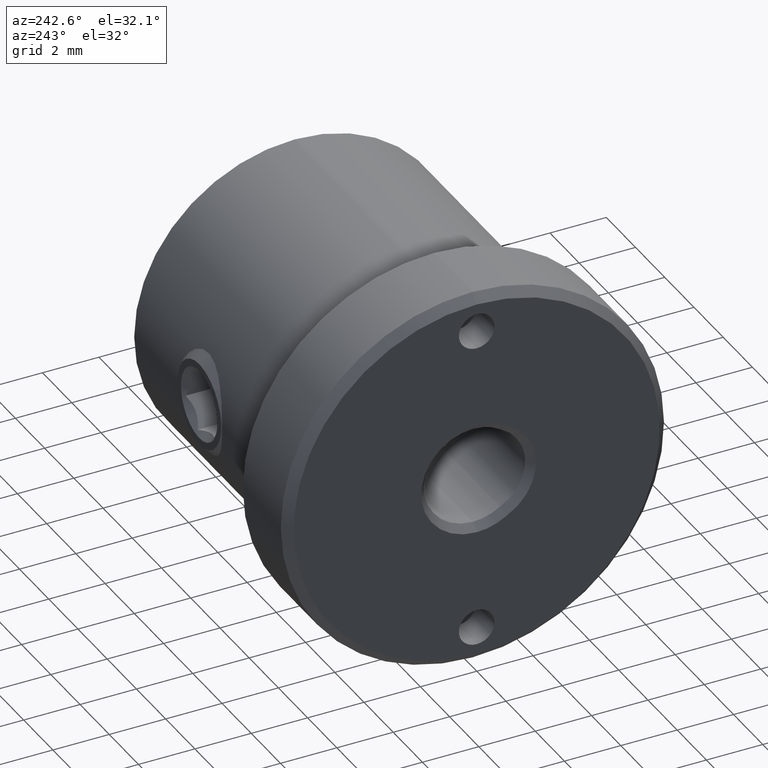
[diagram: clean part render]
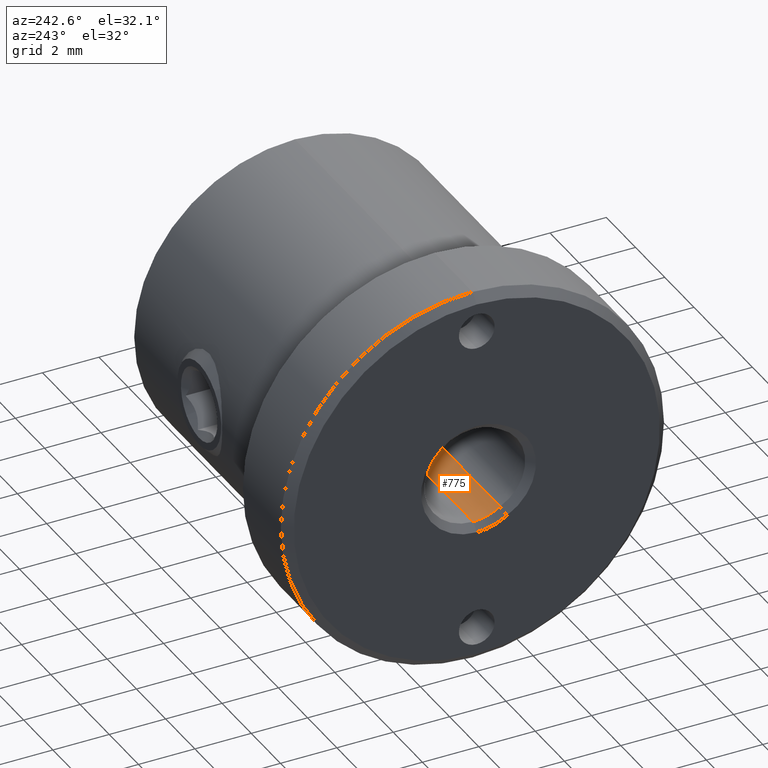
[diagram: same view with one face highlighted and labeled with its STEP entity id]
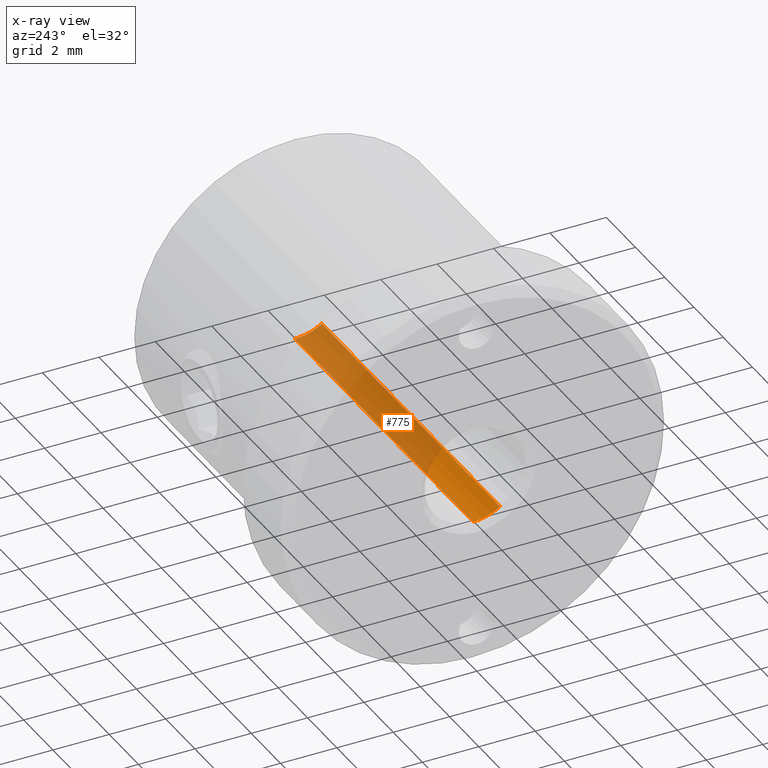
[diagram: x-ray of the same camera — body ghosted, the highlighted face saturated]
A machine part, auxiliary view. The second image highlights one B-rep face of the part: STEP entity #775.
The next image is the same camera in x-ray: the body ghosted, the highlighted face saturated — about 70% of this face is hidden behind the body in this view.
In plain terms, the highlighted cylindrical surface (partial cylindrical patch) has radius 1.725 mm, axis along (-1, -0, -0).
Its self-contained STEP definition (entity closure, byte-faithful):
#98 = CARTESIAN_POINT ( 'NONE',  ( 12.69999999999999929, 2.112515728529184412E-16, -1.725000000000000089 ) ) ;
#137 = EDGE_CURVE ( 'NONE', #706, #2293, #908, .T. ) ;
#168 = VECTOR ( 'NONE', #2200, 1000.000000000000000 ) ;
#276 = ORIENTED_EDGE ( 'NONE', *, *, #2208, .T. ) ;
#431 = DIRECTION ( 'NONE',  ( 0.000000000000000000, 0.000000000000000000, -1.000000000000000000 ) ) ;
#547 = CARTESIAN_POINT ( 'NONE',  ( 6.349999999999999645, -0.9562500000000009326, -1.435691797531767788 ) ) ;
#706 = VERTEX_POINT ( 'NONE', #1246 ) ;
#775 = ADVANCED_FACE ( 'NONE', ( #1041 ), #2010, .F. ) ;
#806 = DIRECTION ( 'NONE',  ( -1.000000000000000000, -0.000000000000000000, -0.000000000000000000 ) ) ;
#836 = CARTESIAN_POINT ( 'NONE',  ( 0.2500000000000036637, 2.112515728529184412E-16, -1.725000000000000089 ) ) ;
#908 = CIRCLE ( 'NONE', #1985, 1.725000000000000089 ) ;
#969 = AXIS2_PLACEMENT_3D ( 'NONE', #2594, #2567, #431 ) ;
#1041 = FACE_OUTER_BOUND ( 'NONE', #2843, .T. ) ;
#1244 = LINE ( 'NONE', #547, #168 ) ;
#1246 = CARTESIAN_POINT ( 'NONE',  ( 12.44999999999999751, -0.9562500000000009326, -1.435691797531767788 ) ) ;
#1324 = ORIENTED_EDGE ( 'NONE', *, *, #137, .T. ) ;
#1409 = VERTEX_POINT ( 'NONE', #836 ) ;
#1706 = CARTESIAN_POINT ( 'NONE',  ( 12.44999999999999751, 0.000000000000000000, 0.000000000000000000 ) ) ;
#1721 = DIRECTION ( 'NONE',  ( 1.000000000000000000, -0.000000000000000000, -0.000000000000000000 ) ) ;
#1751 = LINE ( 'NONE', #98, #2456 ) ;
#1775 = ORIENTED_EDGE ( 'NONE', *, *, #2257, .T. ) ;
#1965 = DIRECTION ( 'NONE',  ( 0.000000000000000000, 0.000000000000000000, -1.000000000000000000 ) ) ;
#1985 = AXIS2_PLACEMENT_3D ( 'NONE', #1706, #1721, #1965 ) ;
#2010 = CYLINDRICAL_SURFACE ( 'NONE', #2405, 1.725000000000000089 ) ;
#2025 = DIRECTION ( 'NONE',  ( 0.000000000000000000, 0.000000000000000000, 1.000000000000000000 ) ) ;
#2118 = CARTESIAN_POINT ( 'NONE',  ( 0.2500000000000036637, -0.9562500000000009326, -1.435691797531767788 ) ) ;
#2200 = DIRECTION ( 'NONE',  ( 1.000000000000000000, 0.000000000000000000, 0.000000000000000000 ) ) ;
#2208 = EDGE_CURVE ( 'NONE', #2293, #1409, #1751, .T. ) ;
#2257 = EDGE_CURVE ( 'NONE', #3038, #706, #1244, .T. ) ;
#2264 = CIRCLE ( 'NONE', #969, 1.725000000000000089 ) ;
#2293 = VERTEX_POINT ( 'NONE', #2994 ) ;
#2405 = AXIS2_PLACEMENT_3D ( 'NONE', #2929, #806, #2025 ) ;
#2456 = VECTOR ( 'NONE', #2687, 1000.000000000000000 ) ;
#2567 = DIRECTION ( 'NONE',  ( -1.000000000000000000, 0.000000000000000000, 0.000000000000000000 ) ) ;
#2594 = CARTESIAN_POINT ( 'NONE',  ( 0.2500000000000036637, 0.000000000000000000, 0.000000000000000000 ) ) ;
#2687 = DIRECTION ( 'NONE',  ( -1.000000000000000000, -0.000000000000000000, -0.000000000000000000 ) ) ;
#2734 = EDGE_CURVE ( 'NONE', #1409, #3038, #2264, .T. ) ;
#2773 = ORIENTED_EDGE ( 'NONE', *, *, #2734, .T. ) ;
#2843 = EDGE_LOOP ( 'NONE', ( #1324, #276, #2773, #1775 ) ) ;
#2929 = CARTESIAN_POINT ( 'NONE',  ( 12.69999999999999929, 0.000000000000000000, 0.000000000000000000 ) ) ;
#2994 = CARTESIAN_POINT ( 'NONE',  ( 12.44999999999999751, 2.112515728529184412E-16, -1.725000000000000089 ) ) ;
#3038 = VERTEX_POINT ( 'NONE', #2118 ) ;